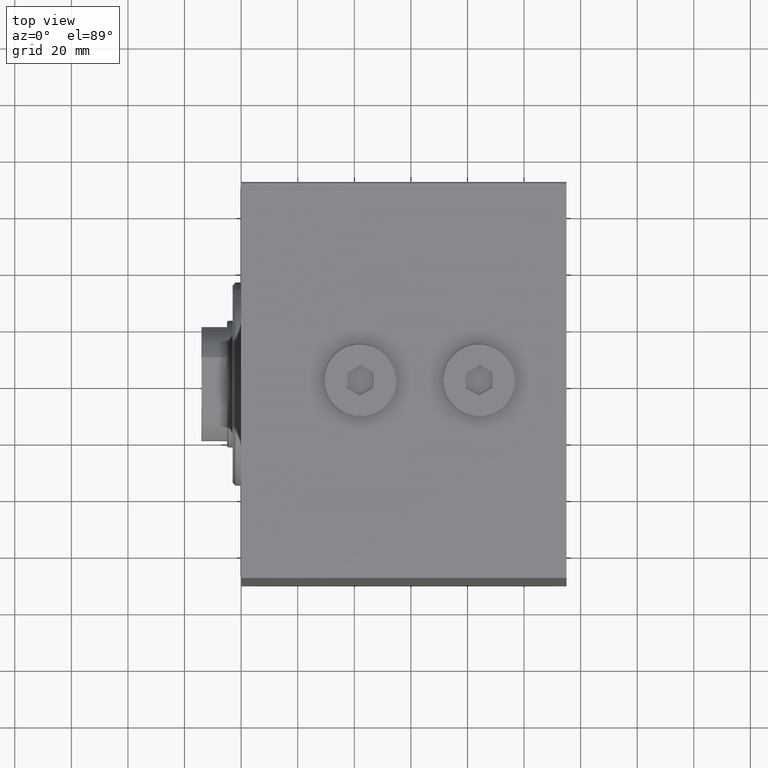
[diagram: clean part render]
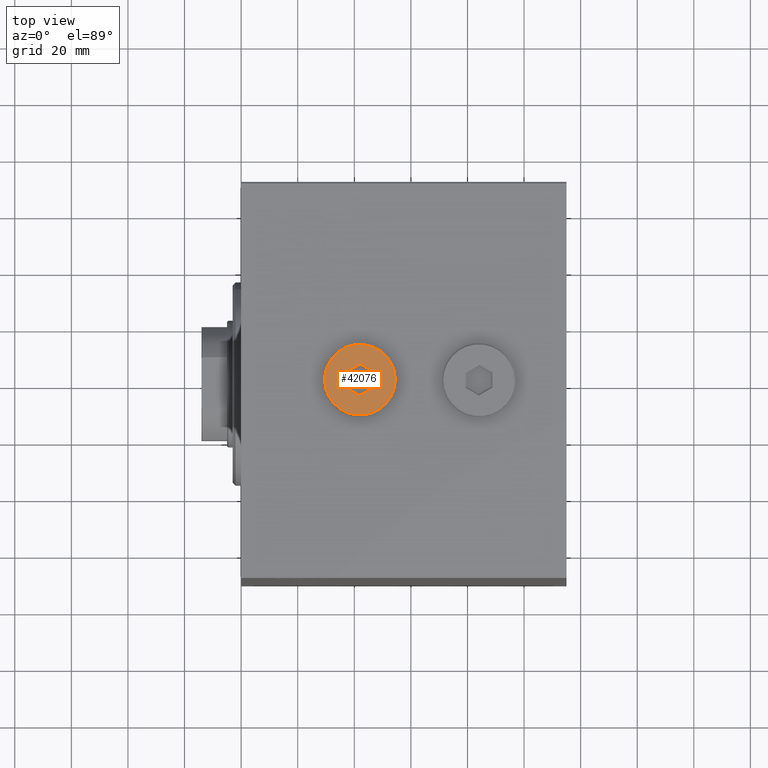
[diagram: same view with one face highlighted and labeled with its STEP entity id]
A machine part, top view. The second image highlights one B-rep face of the part: STEP entity #42076.
In plain terms, the highlighted planar face has unit normal (0, 0, 1).
Its self-contained STEP definition (entity closure, byte-faithful):
#866 = VERTEX_POINT ( 'NONE', #8544 ) ;
#877 = AXIS2_PLACEMENT_3D ( 'NONE', #19078, #18868, #29579 ) ;
#971 = DIRECTION ( 'NONE',  ( 0.000000000000000000, -1.000000000000000000, 0.000000000000000000 ) ) ;
#1084 = CARTESIAN_POINT ( 'NONE',  ( -0.2500000000000021094, 5.436715034868981000, 5.000000000000000000 ) ) ;
#1199 = CARTESIAN_POINT ( 'NONE',  ( 12.50000000000001066, 1.561424668912876097E-15, 5.000000000000000000 ) ) ;
#1241 = VECTOR ( 'NONE', #14794, 1000.000000000000114 ) ;
#1572 = ORIENTED_EDGE ( 'NONE', *, *, #16692, .T. ) ;
#2381 = FACE_BOUND ( 'NONE', #10808, .T. ) ;
#3128 = EDGE_CURVE ( 'NONE', #11139, #30613, #17990, .T. ) ;
#3988 = CARTESIAN_POINT ( 'NONE',  ( 4.833333333333341919, 2.790526301083194216, 5.000000000000000000 ) ) ;
#5701 = DIRECTION ( 'NONE',  ( 0.000000000000000000, 0.000000000000000000, 1.000000000000000000 ) ) ;
#6161 = CARTESIAN_POINT ( 'NONE',  ( 0.000000000000000000, 0.000000000000000000, 5.000000000000000000 ) ) ;
#6563 = DIRECTION ( 'NONE',  ( 0.8660254037844387076, -0.4999999999999998890, 0.000000000000000000 ) ) ;
#7190 = ORIENTED_EDGE ( 'NONE', *, *, #9935, .T. ) ;
#8544 = CARTESIAN_POINT ( 'NONE',  ( -12.50000000000001066, 0.000000000000000000, 5.000000000000000000 ) ) ;
#9283 = ORIENTED_EDGE ( 'NONE', *, *, #44099, .T. ) ;
#9457 = PLANE ( 'NONE',  #18750 ) ;
#9911 = DIRECTION ( 'NONE',  ( 1.000000000000000000, 0.000000000000000000, -0.000000000000000000 ) ) ;
#9935 = EDGE_CURVE ( 'NONE', #31912, #12733, #18687, .T. ) ;
#9980 = LINE ( 'NONE', #27328, #22156 ) ;
#10808 = EDGE_LOOP ( 'NONE', ( #31636, #28078, #23709, #38957, #9283, #7190 ) ) ;
#11139 = VERTEX_POINT ( 'NONE', #22281 ) ;
#12094 = CARTESIAN_POINT ( 'NONE',  ( -4.833333333333340143, 2.501851166488380240, 5.000000000000000000 ) ) ;
#12161 = CARTESIAN_POINT ( 'NONE',  ( 1.144664513637780713E-15, 5.581052602166389320, 5.000000000000000000 ) ) ;
#12733 = VERTEX_POINT ( 'NONE', #42252 ) ;
#14794 = DIRECTION ( 'NONE',  ( 0.8660254037844388186, 0.4999999999999997780, 0.000000000000000000 ) ) ;
#15445 = CIRCLE ( 'NONE', #877, 12.50000000000001066 ) ;
#16692 = EDGE_CURVE ( 'NONE', #866, #32926, #18990, .T. ) ;
#16768 = CARTESIAN_POINT ( 'NONE',  ( 0.000000000000000000, 0.000000000000000000, 5.000000000000000000 ) ) ;
#17793 = DIRECTION ( 'NONE',  ( -0.8660254037844385966, 0.5000000000000001110, 0.000000000000000000 ) ) ;
#17990 = LINE ( 'NONE', #1084, #1241 ) ;
#18106 = CARTESIAN_POINT ( 'NONE',  ( 4.833333333333341919, -2.501851166488378908, 5.000000000000000000 ) ) ;
#18415 = VECTOR ( 'NONE', #971, 1000.000000000000000 ) ;
#18687 = LINE ( 'NONE', #32607, #39335 ) ;
#18750 = AXIS2_PLACEMENT_3D ( 'NONE', #16768, #44124, #9911 ) ;
#18868 = DIRECTION ( 'NONE',  ( 0.000000000000000000, 0.000000000000000000, 1.000000000000000000 ) ) ;
#18990 = CIRCLE ( 'NONE', #37226, 12.50000000000001066 ) ;
#19078 = CARTESIAN_POINT ( 'NONE',  ( 0.000000000000000000, 0.000000000000000000, 5.000000000000000000 ) ) ;
#20064 = EDGE_CURVE ( 'NONE', #12733, #11139, #29457, .T. ) ;
#20642 = FACE_OUTER_BOUND ( 'NONE', #24662, .T. ) ;
#20746 = EDGE_CURVE ( 'NONE', #32926, #866, #15445, .T. ) ;
#21243 = VECTOR ( 'NONE', #39942, 1000.000000000000000 ) ;
#22156 = VECTOR ( 'NONE', #6563, 1000.000000000000000 ) ;
#22281 = CARTESIAN_POINT ( 'NONE',  ( -4.833333333333340143, 2.790526301083195104, 5.000000000000000000 ) ) ;
#22727 = EDGE_CURVE ( 'NONE', #30555, #29202, #32248, .T. ) ;
#23709 = ORIENTED_EDGE ( 'NONE', *, *, #29310, .T. ) ;
#24662 = EDGE_LOOP ( 'NONE', ( #1572, #45035 ) ) ;
#25340 = VECTOR ( 'NONE', #40512, 1000.000000000000000 ) ;
#27328 = CARTESIAN_POINT ( 'NONE',  ( 4.583333333333339255, 2.934863868380602092, 5.000000000000000000 ) ) ;
#28078 = ORIENTED_EDGE ( 'NONE', *, *, #3128, .T. ) ;
#29202 = VERTEX_POINT ( 'NONE', #34401 ) ;
#29310 = EDGE_CURVE ( 'NONE', #30613, #30555, #9980, .T. ) ;
#29457 = LINE ( 'NONE', #12094, #21243 ) ;
#29579 = DIRECTION ( 'NONE',  ( 1.000000000000000000, 0.000000000000000000, 0.000000000000000000 ) ) ;
#30555 = VERTEX_POINT ( 'NONE', #3988 ) ;
#30613 = VERTEX_POINT ( 'NONE', #12161 ) ;
#31636 = ORIENTED_EDGE ( 'NONE', *, *, #20064, .T. ) ;
#31912 = VERTEX_POINT ( 'NONE', #32739 ) ;
#32248 = LINE ( 'NONE', #18106, #18415 ) ;
#32607 = CARTESIAN_POINT ( 'NONE',  ( -4.583333333333337478, -2.934863868380603424, 5.000000000000000000 ) ) ;
#32739 = CARTESIAN_POINT ( 'NONE',  ( -1.883403334290581714E-15, -5.581052602166390209, 5.000000000000000000 ) ) ;
#32926 = VERTEX_POINT ( 'NONE', #1199 ) ;
#33890 = LINE ( 'NONE', #40973, #25340 ) ;
#34401 = CARTESIAN_POINT ( 'NONE',  ( 4.833333333333341919, -2.790526301083194216, 5.000000000000000000 ) ) ;
#36738 = DIRECTION ( 'NONE',  ( 1.000000000000000000, 0.000000000000000000, 0.000000000000000000 ) ) ;
#37226 = AXIS2_PLACEMENT_3D ( 'NONE', #6161, #5701, #36738 ) ;
#38957 = ORIENTED_EDGE ( 'NONE', *, *, #22727, .T. ) ;
#39335 = VECTOR ( 'NONE', #17793, 1000.000000000000114 ) ;
#39942 = DIRECTION ( 'NONE',  ( 0.000000000000000000, 1.000000000000000000, 0.000000000000000000 ) ) ;
#40512 = DIRECTION ( 'NONE',  ( -0.8660254037844387076, -0.4999999999999998335, 0.000000000000000000 ) ) ;
#40973 = CARTESIAN_POINT ( 'NONE',  ( 0.2500000000000015543, -5.436715034868981888, 5.000000000000000000 ) ) ;
#42076 = ADVANCED_FACE ( 'NONE', ( #2381, #20642 ), #9457, .T. ) ;
#42252 = CARTESIAN_POINT ( 'NONE',  ( -4.833333333333340143, -2.790526301083195104, 5.000000000000000000 ) ) ;
#44099 = EDGE_CURVE ( 'NONE', #29202, #31912, #33890, .T. ) ;
#44124 = DIRECTION ( 'NONE',  ( 0.000000000000000000, 0.000000000000000000, 1.000000000000000000 ) ) ;
#45035 = ORIENTED_EDGE ( 'NONE', *, *, #20746, .T. ) ;